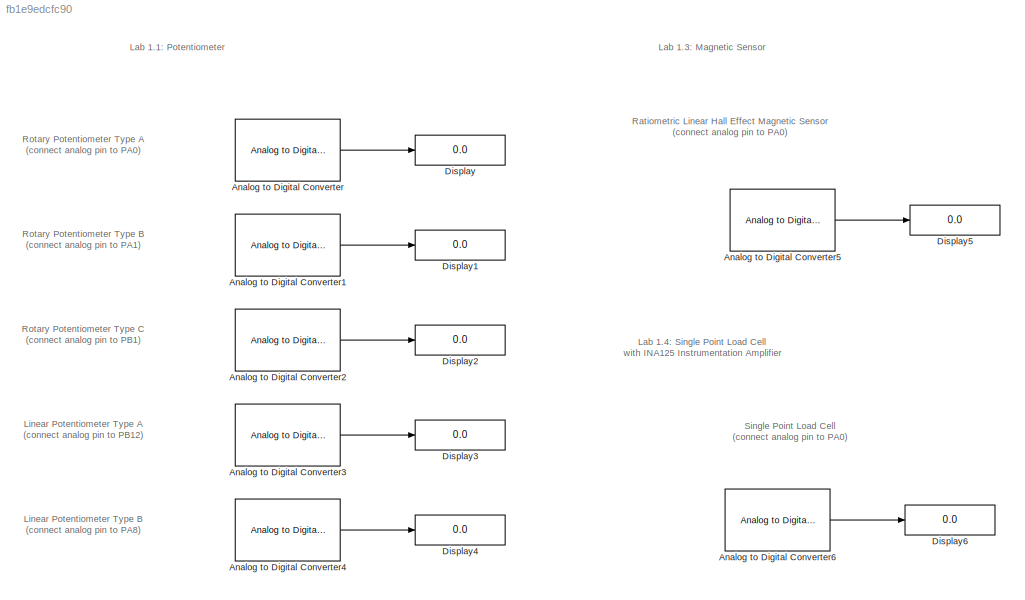
MODEL slx_fb1e9edcfc90
KIND model
CONFIG AbsTol = auto
CONFIG EnableMultiTasking = on
CONFIG FixedStep = auto
CONFIG MaxStep = auto
CONFIG MinStep = auto
CONFIG RelTol = 1e-3
CONFIG SampleTimeConstraint = Unconstrained
CONFIG SolverName = FixedStepAuto
CONFIG StartTime = 0.0
CONFIG StopTime = inf
BLOCK [Reference] Analog to Digital Converter  REF=stm32f4xxblockslib/Analog to Digital Converter
  LibrarySourceBlock = stm32g4xxblockslib/Analog to Digital Converter
  SourceBlock = stm32f4xxblockslib/Analog to Digital Converter
  SourceType = stm32cube.blocks.AnalogInput
BLOCK [Reference] Analog to Digital Converter1  REF=stm32f4xxblockslib/Analog to Digital Converter
  LibrarySourceBlock = stm32g4xxblockslib/Analog to Digital Converter
  SourceBlock = stm32f4xxblockslib/Analog to Digital Converter
  SourceType = stm32cube.blocks.AnalogInput
BLOCK [Reference] Analog to Digital Converter2  REF=stm32f4xxblockslib/Analog to Digital Converter
  LibrarySourceBlock = stm32g4xxblockslib/Analog to Digital Converter
  SourceBlock = stm32f4xxblockslib/Analog to Digital Converter
  SourceType = stm32cube.blocks.AnalogInput
BLOCK [Reference] Analog to Digital Converter3  REF=stm32f4xxblockslib/Analog to Digital Converter
  LibrarySourceBlock = stm32g4xxblockslib/Analog to Digital Converter
  SourceBlock = stm32f4xxblockslib/Analog to Digital Converter
  SourceType = stm32cube.blocks.AnalogInput
BLOCK [Reference] Analog to Digital Converter4  REF=stm32f4xxblockslib/Analog to Digital Converter
  LibrarySourceBlock = stm32g4xxblockslib/Analog to Digital Converter
  SourceBlock = stm32f4xxblockslib/Analog to Digital Converter
  SourceType = stm32cube.blocks.AnalogInput
BLOCK [Reference] Analog to Digital Converter5  REF=stm32f4xxblockslib/Analog to Digital Converter
  Commented = on
  LibrarySourceBlock = stm32g4xxblockslib/Analog to Digital Converter
  SourceBlock = stm32f4xxblockslib/Analog to Digital Converter
  SourceType = stm32cube.blocks.AnalogInput
BLOCK [Reference] Analog to Digital Converter6  REF=stm32f4xxblockslib/Analog to Digital Converter
  Commented = on
  LibrarySourceBlock = stm32g4xxblockslib/Analog to Digital Converter
  SourceBlock = stm32f4xxblockslib/Analog to Digital Converter
  SourceType = stm32cube.blocks.AnalogInput
BLOCK [Display] Display
  Decimation = 1
BLOCK [Display] Display1
  Decimation = 1
BLOCK [Display] Display2
  Decimation = 1
BLOCK [Display] Display3
  Decimation = 1
BLOCK [Display] Display4
  Decimation = 1
BLOCK [Display] Display5
  Commented = on
  Decimation = 1
BLOCK [Display] Display6
  Commented = on
  Decimation = 1
ANNOTATION (root): Single Point Load Cell (connect analog pin to PA0)
ANNOTATION (root): Lab 1.4: Single Point Load Cell with INA125 Instrumentation Amplifier
ANNOTATION (root): Ratiometric Linear Hall Effect Magnetic Sensor (connect analog pin to PA0)
ANNOTATION (root): Lab 1.1: Potentiometer
ANNOTATION (root): Lab 1.3: Magnetic Sensor
ANNOTATION (root): Linear Potentiometer Type A (connect analog pin to PB12)
ANNOTATION (root): Linear Potentiometer Type B (connect analog pin to PA8)
ANNOTATION (root): Rotary Potentiometer Type A (connect analog pin to PA0)
ANNOTATION (root): Rotary Potentiometer Type B (connect analog pin to PA1)
ANNOTATION (root): Rotary Potentiometer Type C (connect analog pin to PB1)
LINE Analog to Digital Converter1:1 -> Display1:1
LINE Analog to Digital Converter2:1 -> Display2:1
LINE Analog to Digital Converter3:1 -> Display3:1
LINE Analog to Digital Converter4:1 -> Display4:1
LINE Analog to Digital Converter5:1 -> Display5:1
LINE Analog to Digital Converter6:1 -> Display6:1
LINE Analog to Digital Converter:1 -> Display:1
